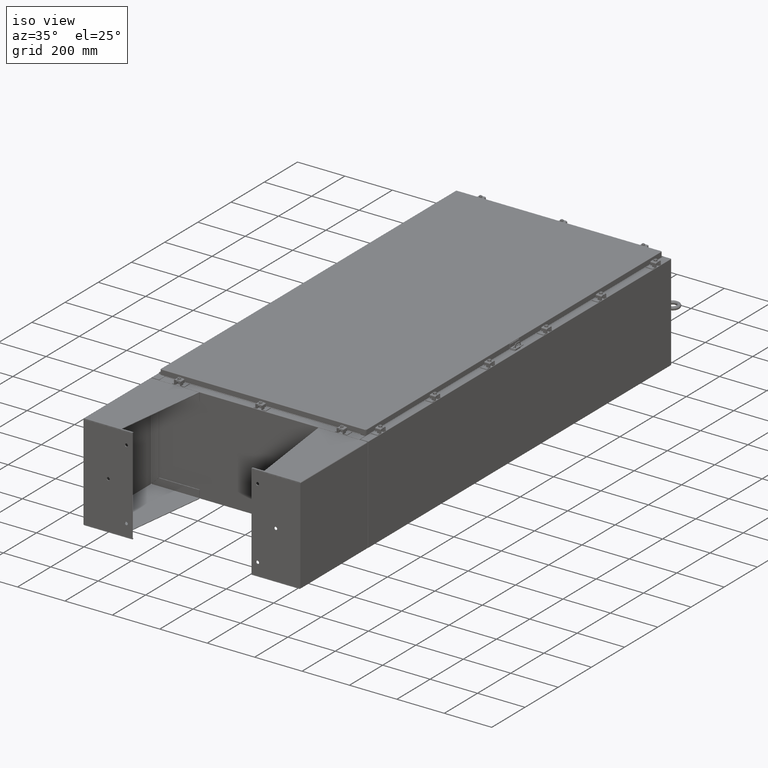
[diagram: clean part render]
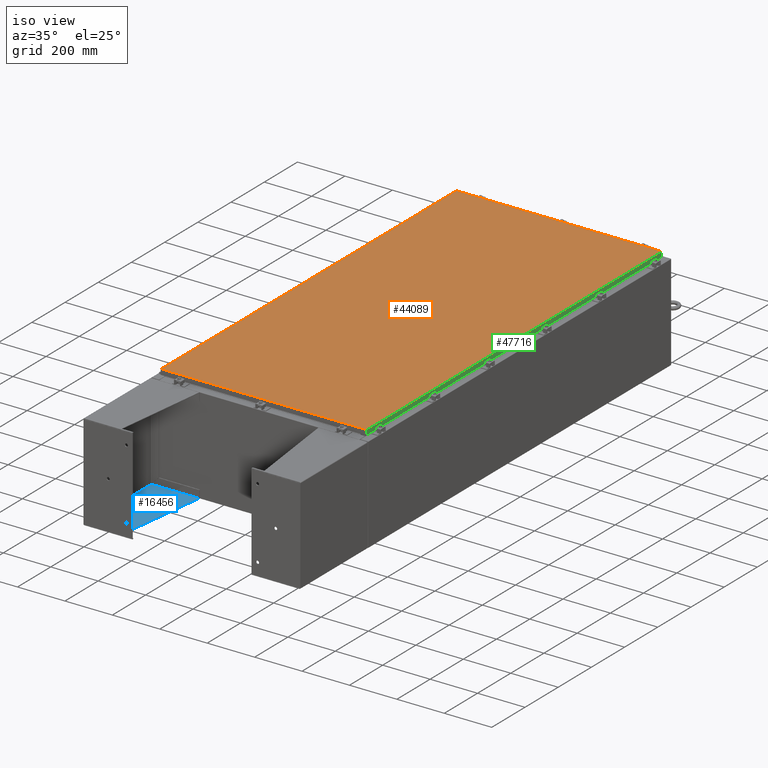
[diagram: same view with three faces highlighted in distinct colors, each labeled with its STEP entity id]
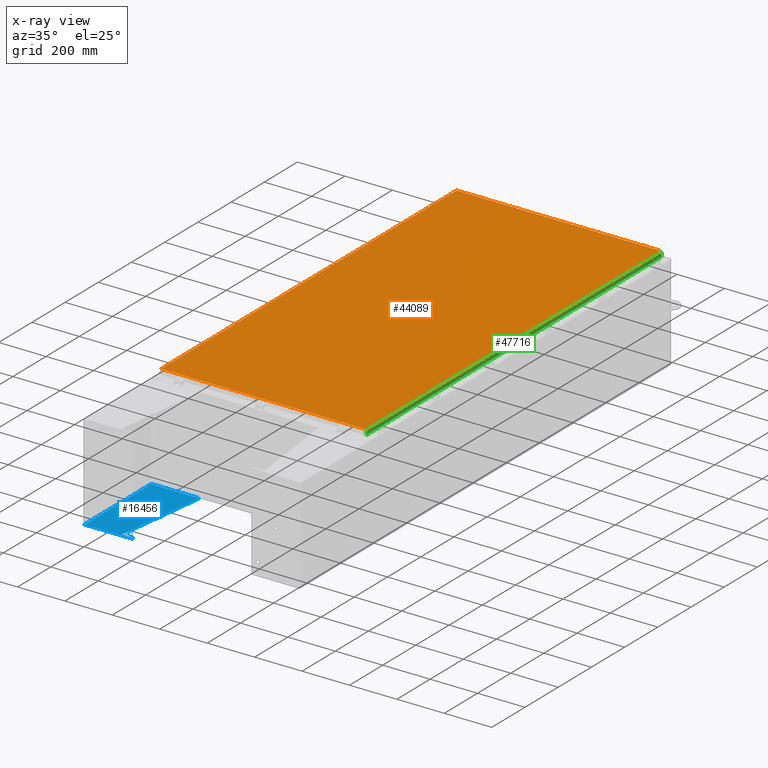
[diagram: x-ray of the same camera — body ghosted, the three highlighted faces saturated]
A machine part, iso view with three faces highlighted in distinct colors.
The next image is the same camera in x-ray (body ghosted, the three faces saturated) — at least one of them is partly hidden behind the body in this view.
Their STEP definitions:

[orange] entity #44089 — the highlighted planar face has unit normal (0, 0, -1).
#27 = CARTESIAN_POINT ( 'NONE',  ( 16.99029999999999800, -35.00630000000000300, -2.048885995248197400E-016 ) ) ;
#425 = CARTESIAN_POINT ( 'NONE',  ( 16.99029999999999800, 35.00630000000001000, 1.946441695485787500E-015 ) ) ;
#4742 = CARTESIAN_POINT ( 'NONE',  ( -16.99030000000000500, -35.00630000000001000, 1.946441695485787500E-015 ) ) ;
#6055 = DIRECTION ( 'NONE',  ( 0.0000000000000000000, -1.000000000000000000, 0.0000000000000000000 ) ) ;
#6328 = CARTESIAN_POINT ( 'NONE',  ( 0.0000000000000000000, 0.0000000000000000000, 0.0000000000000000000 ) ) ;
#6848 = EDGE_CURVE ( 'NONE', #45745, #64213, #75071, .T. ) ;
#11686 = EDGE_CURVE ( 'NONE', #52231, #45745, #37432, .T. ) ;
#12241 = PLANE ( 'NONE',  #35494 ) ;
#13796 = EDGE_CURVE ( 'NONE', #64213, #53832, #48231, .T. ) ;
#15243 = DIRECTION ( 'NONE',  ( -1.000000000000000000, -0.0000000000000000000, -0.0000000000000000000 ) ) ;
#16137 = CARTESIAN_POINT ( 'NONE',  ( -16.99030000000000500, -35.00630000000001000, 1.946441695485787500E-015 ) ) ;
#16318 = CARTESIAN_POINT ( 'NONE',  ( 16.99029999999999800, 35.00630000000001000, 1.946441695485787500E-015 ) ) ;
#16497 = CARTESIAN_POINT ( 'NONE',  ( -16.99029999999998700, 35.00630000000000300, 4.166068190338001500E-015 ) ) ;
#22307 = VECTOR ( 'NONE', #59207, 39.37007874015748100 ) ;
#22962 = EDGE_CURVE ( 'NONE', #53832, #52231, #26871, .T. ) ;
#24344 = DIRECTION ( 'NONE',  ( 0.0000000000000000000, 0.0000000000000000000, -1.000000000000000000 ) ) ;
#26871 = LINE ( 'NONE', #425, #40735 ) ;
#35494 = AXIS2_PLACEMENT_3D ( 'NONE', #6328, #24344, #65765 ) ;
#37432 = LINE ( 'NONE', #16497, #39285 ) ;
#39285 = VECTOR ( 'NONE', #6055, 39.37007874015748100 ) ;
#40735 = VECTOR ( 'NONE', #15243, 39.37007874015748100 ) ;
#44089 = ADVANCED_FACE ( 'NONE', ( #60180 ), #12241, .F. ) ;
#45745 = VERTEX_POINT ( 'NONE', #16137 ) ;
#48231 = LINE ( 'NONE', #76439, #22307 ) ;
#48277 = CARTESIAN_POINT ( 'NONE',  ( -16.99029999999998700, 35.00629999999999600, 4.166068190338001500E-015 ) ) ;
#49790 = ORIENTED_EDGE ( 'NONE', *, *, #22962, .T. ) ;
#52231 = VERTEX_POINT ( 'NONE', #48277 ) ;
#53466 = ORIENTED_EDGE ( 'NONE', *, *, #6848, .T. ) ;
#53832 = VERTEX_POINT ( 'NONE', #16318 ) ;
#55017 = ORIENTED_EDGE ( 'NONE', *, *, #13796, .T. ) ;
#59207 = DIRECTION ( 'NONE',  ( 0.0000000000000000000, 1.000000000000000000, 0.0000000000000000000 ) ) ;
#59474 = VECTOR ( 'NONE', #76499, 39.37007874015748100 ) ;
#60180 = FACE_OUTER_BOUND ( 'NONE', #60558, .T. ) ;
#60558 = EDGE_LOOP ( 'NONE', ( #53466, #55017, #49790, #68363 ) ) ;
#64213 = VERTEX_POINT ( 'NONE', #27 ) ;
#65765 = DIRECTION ( 'NONE',  ( -1.000000000000000000, 0.0000000000000000000, -0.0000000000000000000 ) ) ;
#68363 = ORIENTED_EDGE ( 'NONE', *, *, #11686, .T. ) ;
#75071 = LINE ( 'NONE', #4742, #59474 ) ;
#76439 = CARTESIAN_POINT ( 'NONE',  ( 16.99029999999999800, -35.00630000000000300, -2.048885995248197400E-016 ) ) ;
#76499 = DIRECTION ( 'NONE',  ( 1.000000000000000000, -0.0000000000000000000, -0.0000000000000000000 ) ) ;

[blue] entity #16456 — the highlighted planar face has unit normal (-0, -0, 1).
#519 = CARTESIAN_POINT ( 'NONE',  ( 7.896000000000025700, -7.749999999999999100, 8.001000000000024300 ) ) ;
#949 = DIRECTION ( 'NONE',  ( -3.550958521948299800E-015, 0.0000000000000000000, -1.000000000000000000 ) ) ;
#6632 = CARTESIAN_POINT ( 'NONE',  ( 7.895999999999999900, -7.999999999999999100, 0.03900000000001561900 ) ) ;
#6981 = ORIENTED_EDGE ( 'NONE', *, *, #7997, .F. ) ;
#7997 = EDGE_CURVE ( 'NONE', #36797, #19062, #16475, .T. ) ;
#9637 = CARTESIAN_POINT ( 'NONE',  ( 7.896000000000028300, 7.857000000000002000, 8.001000000000015400 ) ) ;
#11892 = LINE ( 'NONE', #34173, #73306 ) ;
#14444 = ORIENTED_EDGE ( 'NONE', *, *, #25628, .F. ) ;
#14680 = CARTESIAN_POINT ( 'NONE',  ( 7.895999999999999900, -7.999999999999999100, 0.03900000000001561900 ) ) ;
#16456 = ADVANCED_FACE ( 'NONE', ( #42542 ), #32318, .T. ) ;
#16475 = LINE ( 'NONE', #63236, #48077 ) ;
#17163 = VERTEX_POINT ( 'NONE', #519 ) ;
#18418 = VECTOR ( 'NONE', #69685, 39.37007874015748900 ) ;
#19062 = VERTEX_POINT ( 'NONE', #9637 ) ;
#21446 = ORIENTED_EDGE ( 'NONE', *, *, #49907, .T. ) ;
#25628 = EDGE_CURVE ( 'NONE', #42463, #36797, #50528, .T. ) ;
#27261 = VECTOR ( 'NONE', #949, 39.37007874015748100 ) ;
#30051 = VECTOR ( 'NONE', #38630, 39.37007874015748100 ) ;
#30987 = LINE ( 'NONE', #42447, #27261 ) ;
#31896 = DIRECTION ( 'NONE',  ( -1.000000000000000000, 0.0000000000000000000, 3.550958521948298200E-015 ) ) ;
#32318 = PLANE ( 'NONE',  #38445 ) ;
#32385 = LINE ( 'NONE', #40434, #18418 ) ;
#33157 = CARTESIAN_POINT ( 'NONE',  ( 7.896000000000028300, -7.999999999999999100, 8.001000000000015400 ) ) ;
#34173 = CARTESIAN_POINT ( 'NONE',  ( 7.896000000000028300, -7.999999999999999100, 8.001000000000015400 ) ) ;
#36797 = VERTEX_POINT ( 'NONE', #74377 ) ;
#37318 = VERTEX_POINT ( 'NONE', #49569 ) ;
#38445 = AXIS2_PLACEMENT_3D ( 'NONE', #74959, #31896, #74429 ) ;
#38630 = DIRECTION ( 'NONE',  ( -3.550958521948298200E-015, -0.0000000000000000000, -1.000000000000000000 ) ) ;
#39368 = EDGE_CURVE ( 'NONE', #37318, #19062, #32385, .T. ) ;
#40434 = CARTESIAN_POINT ( 'NONE',  ( 7.896000000000019400, -7.749999999999999100, 6.052216497445943600 ) ) ;
#41951 = VERTEX_POINT ( 'NONE', #33157 ) ;
#42447 = CARTESIAN_POINT ( 'NONE',  ( 7.896000000000029200, -7.749999999999999100, 8.001000000000024300 ) ) ;
#42463 = VERTEX_POINT ( 'NONE', #14680 ) ;
#42542 = FACE_OUTER_BOUND ( 'NONE', #55398, .T. ) ;
#47655 = ORIENTED_EDGE ( 'NONE', *, *, #65451, .F. ) ;
#48077 = VECTOR ( 'NONE', #57273, 39.37007874015748100 ) ;
#48212 = DIRECTION ( 'NONE',  ( 0.0000000000000000000, 1.000000000000000000, 0.0000000000000000000 ) ) ;
#49569 = CARTESIAN_POINT ( 'NONE',  ( 7.896000000000022100, -7.749999999999999100, 6.052216497445943600 ) ) ;
#49907 = EDGE_CURVE ( 'NONE', #17163, #37318, #30987, .T. ) ;
#50528 = LINE ( 'NONE', #6632, #68088 ) ;
#55398 = EDGE_LOOP ( 'NONE', ( #47655, #21446, #70974, #6981, #14444, #71165 ) ) ;
#56346 = CARTESIAN_POINT ( 'NONE',  ( 7.895999999999999900, -7.999999999999999100, 1.529834876451987200E-014 ) ) ;
#57273 = DIRECTION ( 'NONE',  ( 0.0000000000000000000, 0.0000000000000000000, 1.000000000000000000 ) ) ;
#61591 = LINE ( 'NONE', #56346, #30051 ) ;
#63236 = CARTESIAN_POINT ( 'NONE',  ( 7.896000000000014100, 7.857000000000001100, 0.03900000000001561900 ) ) ;
#65451 = EDGE_CURVE ( 'NONE', #17163, #41951, #11892, .T. ) ;
#68088 = VECTOR ( 'NONE', #48212, 39.37007874015748100 ) ;
#69685 = DIRECTION ( 'NONE',  ( 4.399772607369799400E-016, 0.9922942345449394800, 0.1239038017531047700 ) ) ;
#69862 = DIRECTION ( 'NONE',  ( -0.0000000000000000000, -1.000000000000000000, -0.0000000000000000000 ) ) ;
#70974 = ORIENTED_EDGE ( 'NONE', *, *, #39368, .T. ) ;
#71165 = ORIENTED_EDGE ( 'NONE', *, *, #76417, .F. ) ;
#73306 = VECTOR ( 'NONE', #69862, 39.37007874015748100 ) ;
#74377 = CARTESIAN_POINT ( 'NONE',  ( 7.895999999999999900, 7.857000000000002000, 0.03900000000001561900 ) ) ;
#74429 = DIRECTION ( 'NONE',  ( 3.550958521948298200E-015, 0.0000000000000000000, 1.000000000000000000 ) ) ;
#74959 = CARTESIAN_POINT ( 'NONE',  ( 7.896000000000028300, -7.999999999999999100, 8.001000000000015400 ) ) ;
#76417 = EDGE_CURVE ( 'NONE', #41951, #42463, #61591, .T. ) ;

[green] entity #47716 — the highlighted planar face has unit normal (1, 0, 0).
#2323 = VECTOR ( 'NONE', #6721, 39.37007874015748100 ) ;
#2580 = LINE ( 'NONE', #64949, #63850 ) ;
#3349 = VERTEX_POINT ( 'NONE', #67618 ) ;
#3361 = CARTESIAN_POINT ( 'NONE',  ( 17.07800000000000300, -35.09400000000000800, -0.8499999999999996400 ) ) ;
#5323 = EDGE_LOOP ( 'NONE', ( #33483, #21418, #56731, #12864, #19642, #76474 ) ) ;
#6032 = LINE ( 'NONE', #3361, #33965 ) ;
#6721 = DIRECTION ( 'NONE',  ( -2.818880942772360100E-015, -6.982962677686265900E-015, 1.000000000000000000 ) ) ;
#10387 = EDGE_CURVE ( 'NONE', #55384, #65930, #13262, .T. ) ;
#12214 = CARTESIAN_POINT ( 'NONE',  ( 17.07800000000000300, 35.00515786437627200, -0.8499999999999996400 ) ) ;
#12525 = LINE ( 'NONE', #31142, #58221 ) ;
#12864 = ORIENTED_EDGE ( 'NONE', *, *, #56601, .F. ) ;
#13262 = LINE ( 'NONE', #74702, #43074 ) ;
#19642 = ORIENTED_EDGE ( 'NONE', *, *, #10387, .T. ) ;
#21418 = ORIENTED_EDGE ( 'NONE', *, *, #74014, .F. ) ;
#21499 = PLANE ( 'NONE',  #75846 ) ;
#21942 = CARTESIAN_POINT ( 'NONE',  ( 17.07799999999999900, 35.00515786437627200, -0.08770000000000007000 ) ) ;
#24757 = FACE_OUTER_BOUND ( 'NONE', #5323, .T. ) ;
#25086 = EDGE_CURVE ( 'NONE', #54994, #43805, #47801, .T. ) ;
#27437 = DIRECTION ( 'NONE',  ( 1.000000000000000000, 0.0000000000000000000, 2.818880942772360100E-015 ) ) ;
#31142 = CARTESIAN_POINT ( 'NONE',  ( 17.07799999999999900, 0.0000000000000000000, -0.08770000000000007000 ) ) ;
#31884 = CARTESIAN_POINT ( 'NONE',  ( 17.07800000000000300, -35.00515786437627200, -0.8499999999999996400 ) ) ;
#33483 = ORIENTED_EDGE ( 'NONE', *, *, #25086, .F. ) ;
#33965 = VECTOR ( 'NONE', #62816, 39.37007874015748100 ) ;
#35026 = CARTESIAN_POINT ( 'NONE',  ( 17.07799999999999600, 34.25515786437626500, -0.8500000000000032000 ) ) ;
#37003 = VERTEX_POINT ( 'NONE', #35026 ) ;
#41346 = DIRECTION ( 'NONE',  ( 0.0000000000000000000, -1.000000000000000000, 0.0000000000000000000 ) ) ;
#41812 = CARTESIAN_POINT ( 'NONE',  ( 17.07800000000000300, -35.09400000000000800, -0.8499999999999996400 ) ) ;
#42027 = VECTOR ( 'NONE', #47731, 39.37007874015748100 ) ;
#43074 = VECTOR ( 'NONE', #65999, 39.37007874015748100 ) ;
#43805 = VERTEX_POINT ( 'NONE', #63249 ) ;
#45759 = LINE ( 'NONE', #41812, #42027 ) ;
#47716 = ADVANCED_FACE ( 'NONE', ( #24757 ), #21499, .T. ) ;
#47731 = DIRECTION ( 'NONE',  ( 0.0000000000000000000, -1.000000000000000000, 0.0000000000000000000 ) ) ;
#47801 = LINE ( 'NONE', #66171, #2323 ) ;
#54994 = VERTEX_POINT ( 'NONE', #31884 ) ;
#55384 = VERTEX_POINT ( 'NONE', #12214 ) ;
#56601 = EDGE_CURVE ( 'NONE', #55384, #37003, #45759, .T. ) ;
#56731 = ORIENTED_EDGE ( 'NONE', *, *, #69678, .F. ) ;
#58221 = VECTOR ( 'NONE', #66619, 39.37007874015748100 ) ;
#62816 = DIRECTION ( 'NONE',  ( 0.0000000000000000000, -1.000000000000000000, 0.0000000000000000000 ) ) ;
#62954 = CARTESIAN_POINT ( 'NONE',  ( 17.07799999999999900, 0.0000000000000000000, 4.840166239667794100E-014 ) ) ;
#63249 = CARTESIAN_POINT ( 'NONE',  ( 17.07799999999999900, -35.00515786437628000, -0.08770000000000007000 ) ) ;
#63850 = VECTOR ( 'NONE', #41346, 39.37007874015748100 ) ;
#64949 = CARTESIAN_POINT ( 'NONE',  ( 17.07799999999999600, 34.25515786437627200, -0.8500000000000032000 ) ) ;
#65930 = VERTEX_POINT ( 'NONE', #21942 ) ;
#65999 = DIRECTION ( 'NONE',  ( -2.818880942772360100E-015, -6.982962677686265900E-015, 1.000000000000000000 ) ) ;
#66171 = CARTESIAN_POINT ( 'NONE',  ( 17.07799999999999900, -35.00515786437628000, -0.07469999999999978000 ) ) ;
#66619 = DIRECTION ( 'NONE',  ( 0.0000000000000000000, -1.000000000000000000, 0.0000000000000000000 ) ) ;
#67618 = CARTESIAN_POINT ( 'NONE',  ( 17.07799999999999600, -34.25515786437627200, -0.8500000000000032000 ) ) ;
#68840 = DIRECTION ( 'NONE',  ( 2.818880942772360100E-015, 0.0000000000000000000, -1.000000000000000000 ) ) ;
#69678 = EDGE_CURVE ( 'NONE', #37003, #3349, #2580, .T. ) ;
#70708 = EDGE_CURVE ( 'NONE', #65930, #43805, #12525, .T. ) ;
#74014 = EDGE_CURVE ( 'NONE', #3349, #54994, #6032, .T. ) ;
#74702 = CARTESIAN_POINT ( 'NONE',  ( 17.07799999999999900, 35.00515786437627200, 2.928413732901333900E-013 ) ) ;
#75846 = AXIS2_PLACEMENT_3D ( 'NONE', #62954, #27437, #68840 ) ;
#76474 = ORIENTED_EDGE ( 'NONE', *, *, #70708, .T. ) ;